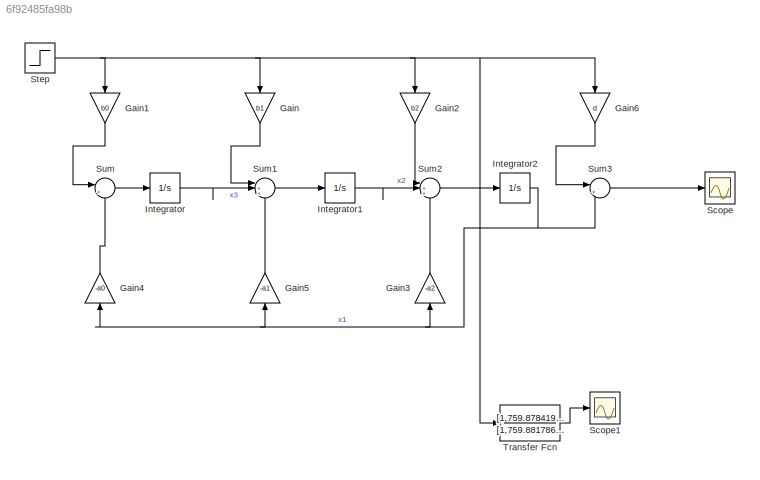
MODEL slx_6f92485fa98b
KIND model
CONFIG AbsTol = auto
CONFIG EnableMultiTasking = off
CONFIG FixedStep = auto
CONFIG MaxStep = auto
CONFIG MinStep = auto
CONFIG RelTol = 1e-3
CONFIG SampleTimeConstraint = Unconstrained
CONFIG SolverName = VariableStepAuto
CONFIG StartTime = 0.0
CONFIG StopTime = 2500
BLOCK [Gain] Gain
  Gain = b1
  NameLocation = left
BLOCK [Gain] Gain1
  Gain = b0
  NameLocation = left
BLOCK [Gain] Gain2
  Gain = b2
  NameLocation = left
BLOCK [Gain] Gain3
  Gain = -a2
  NameLocation = right
BLOCK [Gain] Gain4
  Gain = -a0
  NameLocation = right
BLOCK [Gain] Gain5
  Gain = -a1
  NameLocation = right
BLOCK [Gain] Gain6
  Gain = d
  NameLocation = left
BLOCK [Integrator] Integrator
  Ports = [1, 1]
BLOCK [Integrator] Integrator1
  Ports = [1, 1]
BLOCK [Integrator] Integrator2
  Ports = [1, 1]
BLOCK [Scope] Scope
  Floating = off
  NumInputPorts = 1
  Ports = [1]
  ScopeSpecificationString = Simulink.scopes.TimeScopeBlockCfg('CurrentConfiguration', extmgr.ConfigurationSet(extmgr.Configuration('Core','General UI',true),extmgr.Configuration('Core','Source UI',true),extmgr.Configuration('Sources','WiredSimulink',true),extmgr.Configuration('Visuals','Time Domain',true,'SerializedDisplays',{struct('MinYLimReal','-17.10891','MaxYLimReal','3.0121','YLabelReal','','MinYLimMag','0.00000','MaxY...<+1359ch>
BLOCK [Scope] Scope1
  Floating = off
  NumInputPorts = 1
  Ports = [1]
  ScopeSpecificationString = Simulink.scopes.TimeScopeBlockCfg('CurrentConfiguration', extmgr.ConfigurationSet(extmgr.Configuration('Core','General UI',true),extmgr.Configuration('Core','Source UI',true),extmgr.Configuration('Sources','WiredSimulink',true,'DataLoggingVariableName','ScopeData1'),extmgr.Configuration('Visuals','Time Domain',true,'SerializedDisplays',{struct('MinYLimReal','-0.125','MaxYLimReal','1.125','YLabelRe...<+1396ch>
BLOCK [Step] Step
  SampleTime = 0
BLOCK [Sum] Sum
  Inputs = |++
  Ports = [2, 1]
BLOCK [Sum] Sum1
  Inputs = |+++
  Ports = [3, 1]
BLOCK [Sum] Sum2
  Inputs = |+++
  Ports = [3, 1]
BLOCK [Sum] Sum3
  Inputs = |++
  Ports = [2, 1]
BLOCK [TransferFcn] Transfer Fcn
  Denominator = [1,759.8817864562545,43.6774752884181,0.0692238419051]
  Numerator = [1,759.8784194528876,41.1189620916066,0.0692238419051]
LINE Gain1:1 -> Sum:1
LINE Gain2:1 -> Sum2:1
LINE Gain3:1 -> Sum2:3
LINE Gain4:1 -> Sum:2
LINE Gain5:1 -> Sum1:3
LINE Gain6:1 -> Sum3:1
LINE Gain:1 -> Sum1:1
LINE Integrator1:1 -> Sum2:2
NET Integrator2:1 -> Gain3:1, Gain4:1, Gain5:1, Sum3:2
LINE Integrator:1 -> Sum1:2
NET Step:1 -> Gain1:1, Gain2:1, Gain6:1, Gain:1, Transfer Fcn:1
LINE Sum1:1 -> Integrator1:1
LINE Sum2:1 -> Integrator2:1
LINE Sum3:1 -> Scope:1
LINE Sum:1 -> Integrator:1
LINE Transfer Fcn:1 -> Scope1:1
note: NET lines group one-source signal fan-out (src -> all destinations, sorted); 1:1 wires keep LINE
